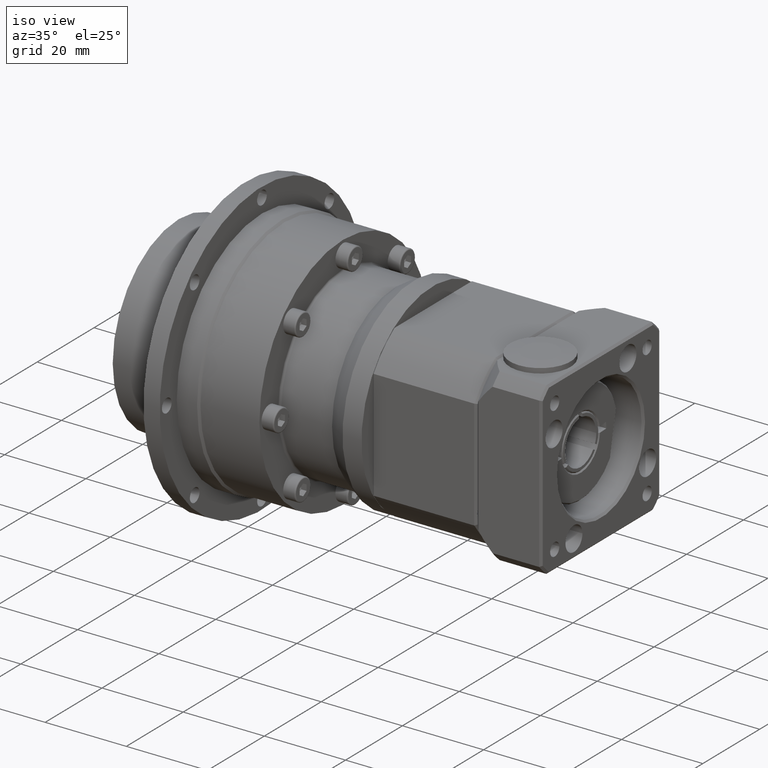
[diagram: clean part render]
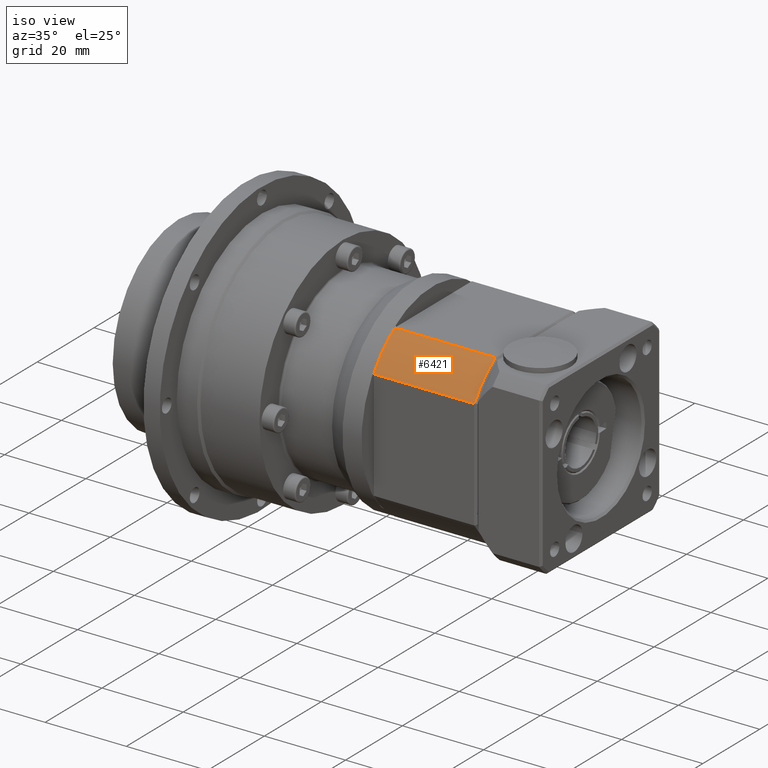
[diagram: same view with one face highlighted and labeled with its STEP entity id]
A machine part, iso view. The second image highlights one B-rep face of the part: STEP entity #6421.
In plain terms, the highlighted cylindrical surface (partial cylindrical patch) has radius 25 mm, axis along (-1, -0, -0).
Its self-contained STEP definition (entity closure, byte-faithful):
#291=LINE('',#10488,#569);
#292=LINE('',#10489,#570);
#569=VECTOR('',#8402,24.8);
#570=VECTOR('',#8403,24.8);
#1221=CYLINDRICAL_SURFACE('',#7072,25.);
#1769=FACE_OUTER_BOUND('',#2327,.T.);
#2327=EDGE_LOOP('',(#5160,#5161,#5162,#5163));
#2890=CIRCLE('',#7037,25.);
#2900=CIRCLE('',#7066,25.);
#3342=VERTEX_POINT('',#10358);
#3343=VERTEX_POINT('',#10365);
#3361=VERTEX_POINT('',#10460);
#3362=VERTEX_POINT('',#10467);
#4005=EDGE_CURVE('',#3343,#3342,#2890,.T.);
#4040=EDGE_CURVE('',#3362,#3361,#2900,.T.);
#4048=EDGE_CURVE('',#3361,#3343,#291,.T.);
#4049=EDGE_CURVE('',#3342,#3362,#292,.T.);
#5160=ORIENTED_EDGE('',*,*,#4005,.F.);
#5161=ORIENTED_EDGE('',*,*,#4048,.F.);
#5162=ORIENTED_EDGE('',*,*,#4040,.F.);
#5163=ORIENTED_EDGE('',*,*,#4049,.F.);
#6421=ADVANCED_FACE('',(#1769),#1221,.T.);
#7037=AXIS2_PLACEMENT_3D('',#10370,#8314,#8315);
#7066=AXIS2_PLACEMENT_3D('',#10468,#8386,#8387);
#7072=AXIS2_PLACEMENT_3D('',#10487,#8400,#8401);
#8314=DIRECTION('center_axis',(1.,1.00613961606657E-15,2.25267977437556E-15));
#8315=DIRECTION('ref_axis',(-2.25267977437556E-15,-5.11309744543894E-16,
1.));
#8386=DIRECTION('center_axis',(-1.,-1.00613961606657E-15,-2.25267977437556E-15));
#8387=DIRECTION('ref_axis',(-2.25267977437556E-15,-5.11309744543894E-16,
1.));
#8400=DIRECTION('center_axis',(-1.,-1.00613961606657E-15,-2.25267977437556E-15));
#8401=DIRECTION('ref_axis',(-2.25267977437556E-15,-5.11309744543894E-16,
1.));
#8402=DIRECTION('',(1.,1.00613961606657E-15,2.25267977437556E-15));
#8403=DIRECTION('',(-1.,-1.00613961606657E-15,-2.25267977437556E-15));
#10358=CARTESIAN_POINT('',(47.3264486176499,-16.5948729115417,-47.8205348759249));
#10365=CARTESIAN_POINT('',(47.3264486176499,-9.15953287779227,-40.3851948421755));
#10370=CARTESIAN_POINT('Origin',(47.3264486176499,4.40512708845828,-61.3851948421755));
#10460=CARTESIAN_POINT('',(22.5264486176499,-9.15953287779229,-40.3851948421755));
#10467=CARTESIAN_POINT('',(22.5264486176499,-16.5948729115418,-47.820534875925));
#10468=CARTESIAN_POINT('Origin',(22.5264486176499,4.40512708845825,-61.3851948421755));
#10487=CARTESIAN_POINT('Origin',(47.8264486176499,4.40512708845828,-61.3851948421755));
#10488=CARTESIAN_POINT('',(47.8264486176499,-9.15953287779227,-40.3851948421755));
#10489=CARTESIAN_POINT('',(47.8264486176499,-16.5948729115417,-47.8205348759249));